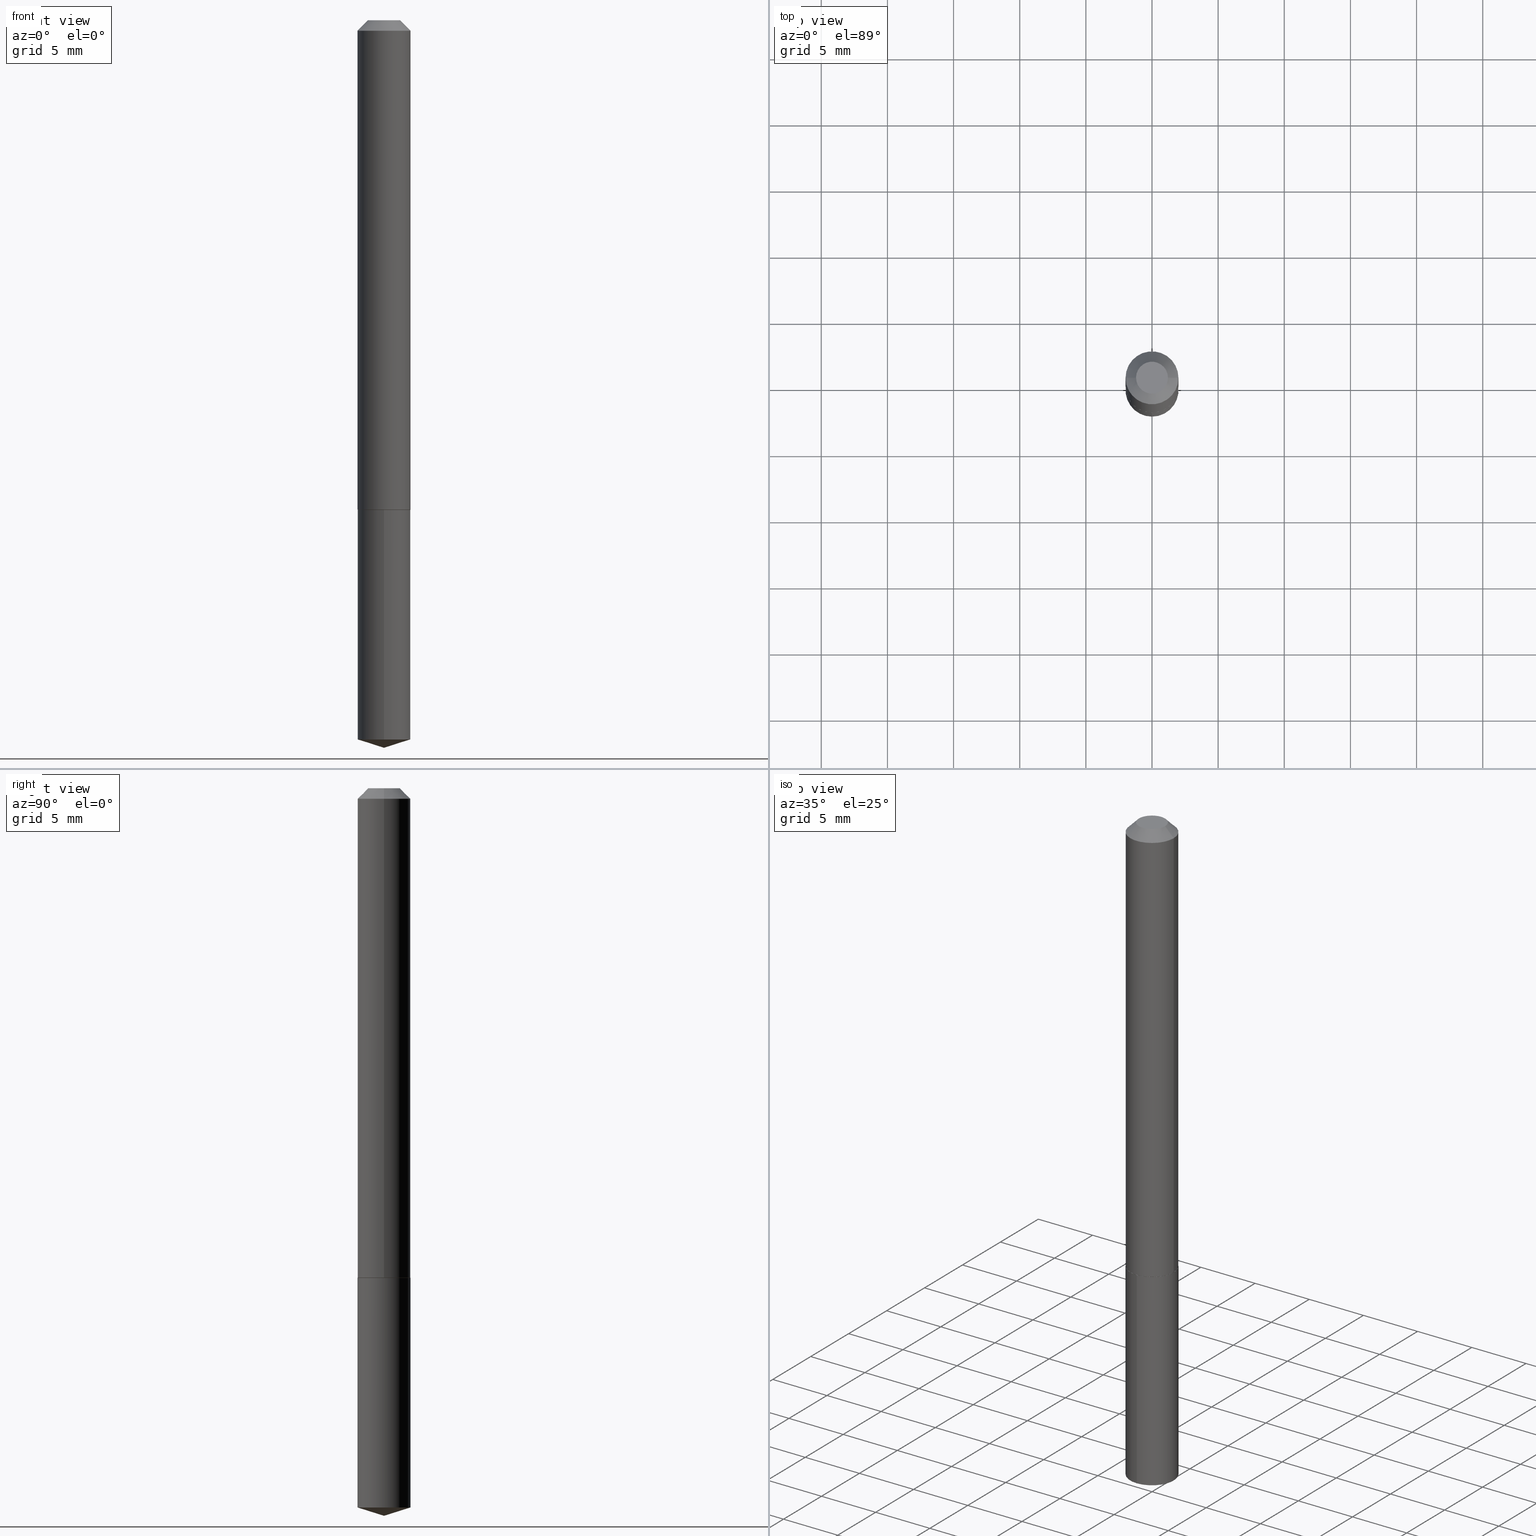
[diagram: canonical four-view strip — front | top / right | iso, engineering-drawing reading convention]
A machine part, canonical four-view strip (front | top / right | iso — engineering-drawing reading convention). The complete STEP part file that produces these views, byte-faithful:
ISO-10303-21;
HEADER;
FILE_DESCRIPTION (( 'STEP AP203' ),
    '1' );
FILE_NAME ('68688.STEP',
    '2024-04-23T13:37:27',
    ( '' ),
    ( '' ),
    'SwSTEP 2.0',
    'SolidWorks 2023',
    '' );
FILE_SCHEMA (( 'CONFIG_CONTROL_DESIGN' ));
ENDSEC;

DATA;
#1 = CIRCLE ( 'NONE', #268, 0.07825000000000018052 ) ;
#2 = ORIENTED_EDGE ( 'NONE', *, *, #316, .T. ) ;
#3 = APPLICATION_PROTOCOL_DEFINITION ( 'international standard', 'config_control_design', 1994, #143 ) ;
#4 = CARTESIAN_POINT ( 'NONE',  ( -5.989671091818618072E-48, 8.551662891793899026E-34, 2.449293598294692324E-19 ) ) ;
#5 = APPROVAL ( #45, 'UNSPECIFIED' ) ;
#6 = LOCAL_TIME ( 9, 37, 27.00000000000000000, #196 ) ;
#7 = ORIENTED_EDGE ( 'NONE', *, *, #195, .T. ) ;
#8 = DIRECTION ( 'NONE',  ( 1.000000000000000000, -6.982962677686271444E-15, 0.000000000000000000 ) ) ;
#9 = DIRECTION ( 'NONE',  ( -2.445414233920121595E-29, 3.491559489432707615E-15, 1.000000000000000000 ) ) ;
#10 = EDGE_CURVE ( 'NONE', #221, #154, #317, .T. ) ;
#11 = APPROVAL_ROLE ( '' ) ;
#12 = VECTOR ( 'NONE', #334, 39.37007874015748143 ) ;
#13 = LOCAL_TIME ( 9, 37, 27.00000000000000000, #390 ) ;
#14 = CIRCLE ( 'NONE', #223, 0.07875000000000000056 ) ;
#15 = CYLINDRICAL_SURFACE ( 'NONE', #227, 0.07875000000000008382 ) ;
#16 = CARTESIAN_POINT ( 'NONE',  ( 0.000000000000000000, 0.000000000000000000, 0.000000000000000000 ) ) ;
#17 = EDGE_CURVE ( 'NONE', #144, #291, #42, .T. ) ;
#18 = FACE_OUTER_BOUND ( 'NONE', #54, .T. ) ;
#19 = LINE ( 'NONE', #377, #287 ) ;
#20 = DIRECTION ( 'NONE',  ( -2.445468806185136597E-29, 3.491481338843145583E-15, 1.000000000000000000 ) ) ;
#21 = ORIENTED_EDGE ( 'NONE', *, *, #224, .F. ) ;
#22 = DIRECTION ( 'NONE',  ( -2.445468806185136877E-29, 3.491481338843145188E-15, 1.000000000000000000 ) ) ;
#23 = CALENDAR_DATE ( 2024, 23, 4 ) ;
#24 = CONICAL_SURFACE ( 'NONE', #246, 124.8659371009143797, 1.265363707695890128 ) ;
#25 = LOCAL_TIME ( 9, 37, 27.00000000000000000, #253 ) ;
#26 = LINE ( 'NONE', #62, #198 ) ;
#27 = ORIENTED_EDGE ( 'NONE', *, *, #331, .T. ) ;
#28 = ORIENTED_EDGE ( 'NONE', *, *, #102, .F. ) ;
#29 = DIRECTION ( 'NONE',  ( 1.000000000000000000, -6.982962677686271444E-15, 0.000000000000000000 ) ) ;
#30 = EDGE_CURVE ( 'NONE', #266, #235, #1, .T. ) ;
#31 = ORIENTED_EDGE ( 'NONE', *, *, #204, .T. ) ;
#32 = DIRECTION ( 'NONE',  ( -2.445468806185136597E-29, 3.491481338843145583E-15, 1.000000000000000000 ) ) ;
#33 = CLOSED_SHELL ( 'NONE', ( #151, #162, #156, #134, #282 ) ) ;
#34 = LINE ( 'NONE', #309, #12 ) ;
#35 = ADVANCED_FACE ( 'NONE', ( #133 ), #15, .T. ) ;
#36 = LINE ( 'NONE', #155, #159 ) ;
#37 = CLOSED_SHELL ( 'NONE', ( #72, #113, #274, #257, #356, #35, #108, #264 ) ) ;
#38 = VERTEX_POINT ( 'NONE', #256 ) ;
#39 = CARTESIAN_POINT ( 'NONE',  ( 3.561336222447415458E-29, -5.084644273757274032E-15, -1.456300000000000150 ) ) ;
#40 = PERSON ( 'UNSPECIFIED', 'UNSPECIFIED', 'UNSPECIFIED', ('UNSPECIFIED'), ('UNSPECIFIED'), ('UNSPECIFIED') ) ;
#41 = CARTESIAN_POINT ( 'NONE',  ( 0.000000000000000000, 0.000000000000000000, 0.000000000000000000 ) ) ;
#42 = LINE ( 'NONE', #183, #77 ) ;
#43 = ORIENTED_EDGE ( 'NONE', *, *, #52, .T. ) ;
#44 = DIRECTION ( 'NONE',  ( -2.445414233920121595E-29, 3.491559489432707615E-15, 1.000000000000000000 ) ) ;
#45 = APPROVAL_STATUS ( 'not_yet_approved' ) ;
#46 = CONICAL_SURFACE ( 'NONE', #119, 124.8659371009143797, 1.265363707695890128 ) ;
#47 = AXIS2_PLACEMENT_3D ( 'NONE', #218, #304, #8 ) ;
#48 = CARTESIAN_POINT ( 'NONE',  ( 0.07875000000000000056, -6.493730091633570889E-16, -0.03125000000000019429 ) ) ;
#49 = AXIS2_PLACEMENT_3D ( 'NONE', #53, #181, #389 ) ;
#50 = ORIENTED_EDGE ( 'NONE', *, *, #17, .F. ) ;
#51 = DIRECTION ( 'NONE',  ( -2.445414233920121595E-29, 3.491559489432707615E-15, 1.000000000000000000 ) ) ;
#52 = EDGE_CURVE ( 'NONE', #154, #221, #174, .T. ) ;
#53 = CARTESIAN_POINT ( 'NONE',  ( 3.562558956850507139E-29, -5.086390014426694746E-15, -1.456800000000000095 ) ) ;
#54 = EDGE_LOOP ( 'NONE', ( #300, #110, #359, #99 ) ) ;
#55 = DIRECTION ( 'NONE',  ( -2.445414233920121595E-29, 3.491559489432707615E-15, 1.000000000000000000 ) ) ;
#56 = DATE_TIME_ROLE ( 'classification_date' ) ;
#57 = AXIS2_PLACEMENT_3D ( 'NONE', #173, #322, #29 ) ;
#58 = EDGE_LOOP ( 'NONE', ( #21, #238, #7, #87 ) ) ;
#59 = ADVANCED_BREP_SHAPE_REPRESENTATION ( '68688', ( #83, #332, #152 ), #298 ) ;
#60 = PRODUCT_DEFINITION_FORMATION_WITH_SPECIFIED_SOURCE ( 'ANY', '', #145, .NOT_KNOWN. ) ;
#61 = EDGE_CURVE ( 'NONE', #158, #383, #19, .T. ) ;
#62 = CARTESIAN_POINT ( 'NONE',  ( -0.07875000000000008382, 5.595524044110794920E-16, -3.873661383575742696E-30 ) ) ;
#63 = PERSON_AND_ORGANIZATION ( #40, #68 ) ;
#64 = EDGE_LOOP ( 'NONE', ( #193, #308, #176 ) ) ;
#65 = DIRECTION ( 'NONE',  ( 6.982962677686265922E-15, 1.000000000000000000, -3.491559489432707615E-15 ) ) ;
#66 = DIRECTION ( 'NONE',  ( -1.000000000000000000, 6.982962677686265922E-15, -4.876176775795935793E-29 ) ) ;
#67 = VECTOR ( 'NONE', #22, 39.37007874015748143 ) ;
#68 = ORGANIZATION ( 'UNSPECIFIED', 'UNSPECIFIED', '' ) ;
#69 = EDGE_CURVE ( 'NONE', #144, #158, #252, .T. ) ;
#70 = CARTESIAN_POINT ( 'NONE',  ( -5.499083108677577483E-16, -0.07875000000000507983, -1.456799999999999873 ) ) ;
#71 = PERSON_AND_ORGANIZATION ( #40, #68 ) ;
#72 = ADVANCED_FACE ( 'NONE', ( #226 ), #313, .T. ) ;
#73 = SECURITY_CLASSIFICATION ( '', '', #182 ) ;
#74 = LINE ( 'NONE', #222, #232 ) ;
#75 = PERSON_AND_ORGANIZATION ( #40, #68 ) ;
#76 = DIRECTION ( 'NONE',  ( -2.445414233920121314E-29, 3.491559489432707615E-15, 1.000000000000000000 ) ) ;
#77 = VECTOR ( 'NONE', #371, 39.37007874015748143 ) ;
#78 = CC_DESIGN_DATE_AND_TIME_ASSIGNMENT ( #342, #164, ( #365 ) ) ;
#79 = PRODUCT_RELATED_PRODUCT_CATEGORY ( 'detail', '', ( #145 ) ) ;
#80 = DIRECTION ( 'NONE',  ( -1.000000000000000000, 6.982962677686265922E-15, 0.000000000000000000 ) ) ;
#81 = CARTESIAN_POINT ( 'NONE',  ( 3.562558956850507139E-29, -5.086390014426694746E-15, -1.456800000000000095 ) ) ;
#82 = AXIS2_PLACEMENT_3D ( 'NONE', #199, #101, #372 ) ;
#83 = MANIFOLD_SOLID_BREP ( 'Body-Move/Copy2[1]', #33 ) ;
#84 = LINE ( 'NONE', #239, #67 ) ;
#85 = ORIENTED_EDGE ( 'NONE', *, *, #337, .F. ) ;
#86 = FACE_OUTER_BOUND ( 'NONE', #131, .T. ) ;
#87 = ORIENTED_EDGE ( 'NONE', *, *, #314, .F. ) ;
#88 = DIRECTION ( 'NONE',  ( -6.982962677686267499E-15, -1.000000000000000000, 3.500519750498723759E-15 ) ) ;
#89 = COORDINATED_UNIVERSAL_TIME_OFFSET ( 5, 0, .BEHIND. ) ;
#90 = ORIENTED_EDGE ( 'NONE', *, *, #344, .F. ) ;
#91 = CARTESIAN_POINT ( 'NONE',  ( 5.595524044111309651E-16, 0.07874999999999247879, -2.140570220375780597 ) ) ;
#92 = ORIENTED_EDGE ( 'NONE', *, *, #69, .F. ) ;
#93 = CARTESIAN_POINT ( 'NONE',  ( -0.07875000000000016709, -4.525091869346193652E-15, -1.456300000000000150 ) ) ;
#94 = PERSON_AND_ORGANIZATION ( #40, #68 ) ;
#95 = AXIS2_PLACEMENT_3D ( 'NONE', #210, #329, #65 ) ;
#96 = CC_DESIGN_APPROVAL ( #215, ( #365 ) ) ;
#97 = MECHANICAL_CONTEXT ( 'NONE', #143, 'mechanical' ) ;
#98 = AXIS2_PLACEMENT_3D ( 'NONE', #123, #129, #341 ) ;
#99 = ORIENTED_EDGE ( 'NONE', *, *, #195, .F. ) ;
#100 = DATE_AND_TIME ( #245, #13 ) ;
#101 = DIRECTION ( 'NONE',  ( -2.445414233920121595E-29, 3.491559489432707615E-15, 1.000000000000000000 ) ) ;
#102 = EDGE_CURVE ( 'NONE', #291, #383, #103, .T. ) ;
#103 = CIRCLE ( 'NONE', #363, 0.07875000000000000056 ) ;
#104 = DIRECTION ( 'NONE',  ( 1.000000000000000000, -6.982962677686267499E-15, 4.876176775795935232E-29 ) ) ;
#105 = APPROVAL_PERSON_ORGANIZATION ( #140, #169, #260 ) ;
#106 = DIRECTION ( 'NONE',  ( -6.982962677686264344E-15, -1.000000000000000000, 3.469013325287953293E-15 ) ) ;
#107 = CC_DESIGN_PERSON_AND_ORGANIZATION_ASSIGNMENT ( #327, #380, ( #73 ) ) ;
#108 = ADVANCED_FACE ( 'NONE', ( #228 ), #157, .T. ) ;
#109 = CARTESIAN_POINT ( 'NONE',  ( -0.07875000000000000056, -2.037324128386980792E-15, -0.03125000000000019429 ) ) ;
#110 = ORIENTED_EDGE ( 'NONE', *, *, #224, .T. ) ;
#111 = DIRECTION ( 'NONE',  ( -2.445468806185136877E-29, 3.491481338843145188E-15, 1.000000000000000000 ) ) ;
#112 = DATE_AND_TIME ( #387, #177 ) ;
#113 = ADVANCED_FACE ( 'NONE', ( #18 ), #136, .T. ) ;
#114 = VERTEX_POINT ( 'NONE', #200 ) ;
#115 = CARTESIAN_POINT ( 'NONE',  ( 0.07875000000000016709, -5.634552584625068955E-15, -1.456300000000000150 ) ) ;
#116 = VERTEX_POINT ( 'NONE', #109 ) ;
#117 = FACE_OUTER_BOUND ( 'NONE', #335, .T. ) ;
#118 = APPROVAL_DATE_TIME ( #290, #5 ) ;
#119 = AXIS2_PLACEMENT_3D ( 'NONE', #382, #138, #88 ) ;
#120 = CARTESIAN_POINT ( 'NONE',  ( -5.499083108677408864E-16, -0.07875000000000743905, -2.140570220375780153 ) ) ;
#121 = DIRECTION ( 'NONE',  ( 1.000000000000000000, 0.000000000000000000, 0.000000000000000000 ) ) ;
#122 = ORIENTED_EDGE ( 'NONE', *, *, #172, .T. ) ;
#123 = CARTESIAN_POINT ( 'NONE',  ( 3.562558956850507139E-29, -5.086390014426694746E-15, -1.456800000000000095 ) ) ;
#124 = ORIENTED_EDGE ( 'NONE', *, *, #337, .T. ) ;
#125 = FACE_OUTER_BOUND ( 'NONE', #284, .T. ) ;
#126 = DIRECTION ( 'NONE',  ( -2.445468806185136597E-29, 3.491481338843145583E-15, 1.000000000000000000 ) ) ;
#127 = EDGE_CURVE ( 'NONE', #221, #114, #315, .T. ) ;
#128 = ORIENTED_EDGE ( 'NONE', *, *, #61, .F. ) ;
#129 = DIRECTION ( 'NONE',  ( -2.445468806185136597E-29, 3.491481338843145583E-15, 1.000000000000000000 ) ) ;
#130 = CC_DESIGN_DATE_AND_TIME_ASSIGNMENT ( #237, #56, ( #73 ) ) ;
#131 = EDGE_LOOP ( 'NONE', ( #90, #31, #92 ) ) ;
#132 = PERSON_AND_ORGANIZATION_ROLE ( 'creator' ) ;
#133 = FACE_OUTER_BOUND ( 'NONE', #58, .T. ) ;
#134 = ADVANCED_FACE ( 'NONE', ( #343 ), #203, .T. ) ;
#135 = EDGE_LOOP ( 'NONE', ( #205, #2, #189, #219 ) ) ;
#136 = CYLINDRICAL_SURFACE ( 'NONE', #345, 0.07875000000000008382 ) ;
#137 = ORIENTED_EDGE ( 'NONE', *, *, #102, .T. ) ;
#138 = DIRECTION ( 'NONE',  ( -2.445414233920121595E-29, 3.491559489432707615E-15, 1.000000000000000000 ) ) ;
#139 = AXIS2_PLACEMENT_3D ( 'NONE', #280, #255, #80 ) ;
#140 = PERSON_AND_ORGANIZATION ( #40, #68 ) ;
#141 = FACE_OUTER_BOUND ( 'NONE', #209, .T. ) ;
#142 = CC_DESIGN_PERSON_AND_ORGANIZATION_ASSIGNMENT ( #310, #132, ( #365 ) ) ;
#143 = APPLICATION_CONTEXT ( 'configuration controlled 3d designs of mechanical parts and assemblies' ) ;
#144 = VERTEX_POINT ( 'NONE', #91 ) ;
#145 = PRODUCT ( '68688', '68688', '', ( #97 ) ) ;
#146 = ORIENTED_EDGE ( 'NONE', *, *, #331, .F. ) ;
#147 = DIRECTION ( 'NONE',  ( -2.445414233920121595E-29, 3.491559489432707615E-15, 1.000000000000000000 ) ) ;
#148 = SHAPE_DEFINITION_REPRESENTATION ( #150, #59 ) ;
#149 = CARTESIAN_POINT ( 'NONE',  ( 0.07825000000000018052, -5.632806843955645874E-15, -1.456800000000000095 ) ) ;
#150 = PRODUCT_DEFINITION_SHAPE ( 'NONE', 'NONE',  #365 ) ;
#151 = ADVANCED_FACE ( 'NONE', ( #141 ), #384, .T. ) ;
#152 = AXIS2_PLACEMENT_3D ( 'NONE', #41, #188, #121 ) ;
#153 = CARTESIAN_POINT ( 'NONE',  ( 5.295299982130630381E-29, -7.560622918417585695E-15, -2.165399999999999991 ) ) ;
#154 = VERTEX_POINT ( 'NONE', #262 ) ;
#155 = CARTESIAN_POINT ( 'NONE',  ( 5.295460378139651895E-29, -7.560395218859838448E-15, -2.165399999999999991 ) ) ;
#156 = ADVANCED_FACE ( 'NONE', ( #86 ), #46, .T. ) ;
#157 = CONICAL_SURFACE ( 'NONE', #339, 0.07875000000000000056, 0.7853981633974452814 ) ;
#158 = VERTEX_POINT ( 'NONE', #120 ) ;
#159 = VECTOR ( 'NONE', #190, 39.37007874015747433 ) ;
#160 = PERSON_AND_ORGANIZATION_ROLE ( 'design_owner' ) ;
#161 = DIRECTION ( 'NONE',  ( -2.445468806185136597E-29, 3.491481338843145583E-15, 1.000000000000000000 ) ) ;
#162 = ADVANCED_FACE ( 'NONE', ( #171 ), #24, .T. ) ;
#163 = AXIS2_PLACEMENT_3D ( 'NONE', #4, #126, #307 ) ;
#164 = DATE_TIME_ROLE ( 'creation_date' ) ;
#165 = CIRCLE ( 'NONE', #388, 0.07875000000000016709 ) ;
#166 = CARTESIAN_POINT ( 'NONE',  ( 3.562558956850507139E-29, -5.086390014426694746E-15, -1.456800000000000095 ) ) ;
#167 = DIRECTION ( 'NONE',  ( 0.7071067811865453523, -7.319954787623248157E-15, -0.7071067811865496822 ) ) ;
#168 = DIRECTION ( 'NONE',  ( 2.445468806185136597E-29, -3.491481338843145583E-15, -1.000000000000000000 ) ) ;
#169 = APPROVAL ( #263, 'UNSPECIFIED' ) ;
#170 = ORIENTED_EDGE ( 'NONE', *, *, #30, .F. ) ;
#171 = FACE_OUTER_BOUND ( 'NONE', #64, .T. ) ;
#172 = EDGE_CURVE ( 'NONE', #235, #38, #259, .T. ) ;
#173 = CARTESIAN_POINT ( 'NONE',  ( 3.561336222447415458E-29, -5.084644273757274032E-15, -1.456300000000000150 ) ) ;
#174 = CIRCLE ( 'NONE', #333, 0.04749999999999999362 ) ;
#175 = PERSON_AND_ORGANIZATION ( #40, #68 ) ;
#176 = ORIENTED_EDGE ( 'NONE', *, *, #374, .F. ) ;
#177 = LOCAL_TIME ( 9, 37, 27.00000000000000000, #378 ) ;
#178 = ORIENTED_EDGE ( 'NONE', *, *, #52, .F. ) ;
#179 = DIRECTION ( 'NONE',  ( 1.000000000000000000, -6.982962677686265922E-15, 4.876176775795935793E-29 ) ) ;
#180 = ORIENTED_EDGE ( 'NONE', *, *, #30, .T. ) ;
#181 = DIRECTION ( 'NONE',  ( -2.445414233920121595E-29, 3.491559489432707615E-15, 1.000000000000000000 ) ) ;
#182 = SECURITY_CLASSIFICATION_LEVEL ( 'unclassified' ) ;
#183 = CARTESIAN_POINT ( 'NONE',  ( 5.595524044111143991E-16, 0.07874999999999490741, -1.456800000000000317 ) ) ;
#184 = DIRECTION ( 'NONE',  ( -2.445468806185136597E-29, 3.491481338843145583E-15, 1.000000000000000000 ) ) ;
#185 = AXIS2_PLACEMENT_3D ( 'NONE', #211, #184, #296 ) ;
#186 = CC_DESIGN_APPROVAL ( #5, ( #60 ) ) ;
#187 = DIRECTION ( 'NONE',  ( -6.982962677686264344E-15, -1.000000000000000000, 3.469013325287953293E-15 ) ) ;
#188 = DIRECTION ( 'NONE',  ( 0.000000000000000000, 0.000000000000000000, 1.000000000000000000 ) ) ;
#189 = ORIENTED_EDGE ( 'NONE', *, *, #385, .F. ) ;
#190 = DIRECTION ( 'NONE',  ( 6.776566513254254982E-15, 0.9537169507482283759, 0.3007057995042687337 ) ) ;
#191 = DIRECTION ( 'NONE',  ( 1.000000000000000000, -6.982962677686271444E-15, 0.000000000000000000 ) ) ;
#192 = AXIS2_PLACEMENT_3D ( 'NONE', #338, #9, #187 ) ;
#193 = ORIENTED_EDGE ( 'NONE', *, *, #204, .F. ) ;
#194 = APPROVAL_STATUS ( 'not_yet_approved' ) ;
#195 = EDGE_CURVE ( 'NONE', #38, #114, #84, .T. ) ;
#196 = COORDINATED_UNIVERSAL_TIME_OFFSET ( 5, 0, .BEHIND. ) ;
#197 = DIRECTION ( 'NONE',  ( 1.000000000000000000, -6.982962677686267499E-15, 4.876182450887182109E-29 ) ) ;
#198 = VECTOR ( 'NONE', #111, 39.37007874015748143 ) ;
#199 = CARTESIAN_POINT ( 'NONE',  ( 5.234660386488139142E-29, -7.473814415971244607E-15, -2.140570220375780153 ) ) ;
#200 = CARTESIAN_POINT ( 'NONE',  ( 0.07875000000000000056, -6.590171027066424463E-16, -0.03125000000000019429 ) ) ;
#201 = CONICAL_SURFACE ( 'NONE', #57, 0.07875000000000016709, 0.7853981633975336552 ) ;
#202 = DIRECTION ( 'NONE',  ( 1.000000000000000000, -6.982962677686264344E-15, 0.000000000000000000 ) ) ;
#203 = CYLINDRICAL_SURFACE ( 'NONE', #295, 0.07875000000000000056 ) ;
#204 = EDGE_CURVE ( 'NONE', #323, #158, #207, .T. ) ;
#205 = ORIENTED_EDGE ( 'NONE', *, *, #370, .T. ) ;
#206 = FACE_OUTER_BOUND ( 'NONE', #366, .T. ) ;
#207 = LINE ( 'NONE', #153, #325 ) ;
#208 = AXIS2_PLACEMENT_3D ( 'NONE', #271, #269, #66 ) ;
#209 = EDGE_LOOP ( 'NONE', ( #321, #381, #85, #128 ) ) ;
#210 = CARTESIAN_POINT ( 'NONE',  ( 3.562558956850507139E-29, -5.086390014426694746E-15, -1.456800000000000095 ) ) ;
#211 = CARTESIAN_POINT ( 'NONE',  ( 7.642090019328599159E-31, -1.091087918388489774E-16, -0.03125000000000019429 ) ) ;
#212 = APPROVAL_ROLE ( '' ) ;
#213 = CONICAL_SURFACE ( 'NONE', #47, 0.07875000000000016709, 0.7853981633975336552 ) ;
#214 = CARTESIAN_POINT ( 'NONE',  ( 5.295299982130631503E-29, -7.560622918417585695E-15, -2.165399999999999991 ) ) ;
#215 = APPROVAL ( #194, 'UNSPECIFIED' ) ;
#216 = ORIENTED_EDGE ( 'NONE', *, *, #127, .T. ) ;
#217 = DIRECTION ( 'NONE',  ( 1.000000000000000000, -6.982962677686271444E-15, 0.000000000000000000 ) ) ;
#218 = CARTESIAN_POINT ( 'NONE',  ( 3.561336222447415458E-29, -5.084644273757274032E-15, -1.456300000000000150 ) ) ;
#219 = ORIENTED_EDGE ( 'NONE', *, *, #172, .F. ) ;
#220 = VECTOR ( 'NONE', #326, 39.37007874015748143 ) ;
#221 = VERTEX_POINT ( 'NONE', #379 ) ;
#222 = CARTESIAN_POINT ( 'NONE',  ( -0.07875000000000000056, 4.407995190289445409E-16, -0.03125000000000019429 ) ) ;
#223 = AXIS2_PLACEMENT_3D ( 'NONE', #244, #44, #306 ) ;
#224 = EDGE_CURVE ( 'NONE', #248, #116, #26, .T. ) ;
#225 = APPROVAL_DATE_TIME ( #100, #215 ) ;
#226 = FACE_OUTER_BOUND ( 'NONE', #283, .T. ) ;
#227 = AXIS2_PLACEMENT_3D ( 'NONE', #16, #20, #104 ) ;
#228 = FACE_OUTER_BOUND ( 'NONE', #349, .T. ) ;
#229 = DIRECTION ( 'NONE',  ( -2.445468806185136597E-29, 3.491481338843145583E-15, 1.000000000000000000 ) ) ;
#230 = DESIGN_CONTEXT ( 'detailed design', #355, 'design' ) ;
#231 = ORIENTED_EDGE ( 'NONE', *, *, #316, .F. ) ;
#232 = VECTOR ( 'NONE', #336, 39.37007874015748143 ) ;
#233 = CARTESIAN_POINT ( 'NONE',  ( -0.07825000000000018052, -4.527741096520304853E-15, -1.456800000000000095 ) ) ;
#234 = PERSON_AND_ORGANIZATION_ROLE ( 'design_supplier' ) ;
#235 = VERTEX_POINT ( 'NONE', #149 ) ;
#236 = DIRECTION ( 'NONE',  ( -2.438088387897960049E-29, 3.491481338843145188E-15, 1.000000000000000000 ) ) ;
#237 = DATE_AND_TIME ( #353, #278 ) ;
#238 = ORIENTED_EDGE ( 'NONE', *, *, #360, .T. ) ;
#239 = CARTESIAN_POINT ( 'NONE',  ( 0.07875000000000008382, -5.499083108677941345E-16, 3.839989210939303220E-30 ) ) ;
#240 = ORIENTED_EDGE ( 'NONE', *, *, #10, .F. ) ;
#241 = FACE_OUTER_BOUND ( 'NONE', #286, .T. ) ;
#242 = UNCERTAINTY_MEASURE_WITH_UNIT (LENGTH_MEASURE( 1.000000000000000082E-05 ), #275, 'distance_accuracy_value', 'NONE');
#243 = DIRECTION ( 'NONE',  ( 1.000000000000000000, -6.982962677686265922E-15, 0.000000000000000000 ) ) ;
#244 = CARTESIAN_POINT ( 'NONE',  ( 5.234660386488139142E-29, -7.473814415971244607E-15, -2.140570220375780153 ) ) ;
#245 = CALENDAR_DATE ( 2024, 23, 4 ) ;
#246 = AXIS2_PLACEMENT_3D ( 'NONE', #285, #147, #358 ) ;
#247 = APPROVAL_PERSON_ORGANIZATION ( #94, #215, #212 ) ;
#248 = VERTEX_POINT ( 'NONE', #93 ) ;
#249 = EDGE_LOOP ( 'NONE', ( #50, #303, #311, #28 ) ) ;
#250 =( LENGTH_UNIT ( ) NAMED_UNIT ( * ) SI_UNIT ( $, .METRE. ) );
#251 = ORIENTED_EDGE ( 'NONE', *, *, #127, .F. ) ;
#252 = CIRCLE ( 'NONE', #82, 0.07875000000000000056 ) ;
#253 = COORDINATED_UNIVERSAL_TIME_OFFSET ( 5, 0, .BEHIND. ) ;
#254 = DIRECTION ( 'NONE',  ( -2.445468806185136597E-29, 3.491481338843145583E-15, 1.000000000000000000 ) ) ;
#255 = DIRECTION ( 'NONE',  ( 2.445468806185136597E-29, -3.491481338843145583E-15, -1.000000000000000000 ) ) ;
#256 = CARTESIAN_POINT ( 'NONE',  ( 0.07875000000000016709, -5.634552584625068955E-15, -1.456300000000000150 ) ) ;
#257 = ADVANCED_FACE ( 'NONE', ( #206 ), #386, .F. ) ;
#258 = AXIS2_PLACEMENT_3D ( 'NONE', #330, #236, #179 ) ;
#259 = LINE ( 'NONE', #115, #220 ) ;
#260 = APPROVAL_ROLE ( '' ) ;
#261 = AXIS2_PLACEMENT_3D ( 'NONE', #39, #161, #191 ) ;
#262 = CARTESIAN_POINT ( 'NONE',  ( -0.04749999999999999362, 3.862451231095211738E-16, 2.449293598269590716E-19 ) ) ;
#263 = APPROVAL_STATUS ( 'not_yet_approved' ) ;
#264 = ADVANCED_FACE ( 'NONE', ( #117 ), #354, .F. ) ;
#265 = ORIENTED_EDGE ( 'NONE', *, *, #360, .F. ) ;
#266 = VERTEX_POINT ( 'NONE', #233 ) ;
#267 = PLANE ( 'NONE',  #95 ) ;
#268 = AXIS2_PLACEMENT_3D ( 'NONE', #166, #281, #202 ) ;
#269 = DIRECTION ( 'NONE',  ( 2.438088387897960049E-29, -3.491481338843145188E-15, -1.000000000000000000 ) ) ;
#270 = PERSON_AND_ORGANIZATION_ROLE ( 'creator' ) ;
#271 = CARTESIAN_POINT ( 'NONE',  ( -2.994835545909309036E-48, 4.275831445896949513E-34, 1.224646799147346162E-19 ) ) ;
#272 = CARTESIAN_POINT ( 'NONE',  ( 3.561336222447415458E-29, -5.084644273757274032E-15, -1.456300000000000150 ) ) ;
#273 = APPROVAL_PERSON_ORGANIZATION ( #75, #5, #11 ) ;
#274 = ADVANCED_FACE ( 'NONE', ( #292 ), #201, .T. ) ;
#275 =( CONVERSION_BASED_UNIT ( 'INCH', #364 ) LENGTH_UNIT ( ) NAMED_UNIT ( #320 ) );
#276 =( NAMED_UNIT ( * ) SI_UNIT ( $, .STERADIAN. ) SOLID_ANGLE_UNIT ( ) );
#277 = AXIS2_PLACEMENT_3D ( 'NONE', #294, #32, #243 ) ;
#278 = LOCAL_TIME ( 9, 37, 27.00000000000000000, #89 ) ;
#279 = CC_DESIGN_PERSON_AND_ORGANIZATION_ASSIGNMENT ( #71, #160, ( #145 ) ) ;
#280 = CARTESIAN_POINT ( 'NONE',  ( 7.642090019328599159E-31, -1.091087918388489774E-16, -0.03125000000000019429 ) ) ;
#281 = DIRECTION ( 'NONE',  ( -2.445468806185136597E-29, 3.491481338843145583E-15, 1.000000000000000000 ) ) ;
#282 = ADVANCED_FACE ( 'NONE', ( #241 ), #267, .F. ) ;
#283 = EDGE_LOOP ( 'NONE', ( #240, #216, #318, #146 ) ) ;
#284 = EDGE_LOOP ( 'NONE', ( #231, #180, #122, #265 ) ) ;
#285 = CARTESIAN_POINT ( 'NONE',  ( -9.098077145873076206E-28, 1.299024629562710534E-13, 37.20467874015748322 ) ) ;
#286 = EDGE_LOOP ( 'NONE', ( #124, #137 ) ) ;
#287 = VECTOR ( 'NONE', #76, 39.37007874015748143 ) ;
#288 = EDGE_CURVE ( 'NONE', #114, #116, #368, .T. ) ;
#289 = CARTESIAN_POINT ( 'NONE',  ( 3.562558956850507139E-29, -5.086390014426694746E-15, -1.456800000000000095 ) ) ;
#290 = DATE_AND_TIME ( #23, #25 ) ;
#291 = VERTEX_POINT ( 'NONE', #361 ) ;
#292 = FACE_OUTER_BOUND ( 'NONE', #135, .T. ) ;
#293 = APPROVAL_DATE_TIME ( #112, #169 ) ;
#294 = CARTESIAN_POINT ( 'NONE',  ( 7.642090019328599159E-31, -1.091087918388489774E-16, -0.03125000000000019429 ) ) ;
#295 = AXIS2_PLACEMENT_3D ( 'NONE', #289, #55, #352 ) ;
#296 = DIRECTION ( 'NONE',  ( 1.000000000000000000, -6.982962677686265922E-15, 0.000000000000000000 ) ) ;
#297 = ORIENTED_EDGE ( 'NONE', *, *, #314, .T. ) ;
#298 =( GEOMETRIC_REPRESENTATION_CONTEXT ( 3 ) GLOBAL_UNCERTAINTY_ASSIGNED_CONTEXT ( ( #242 ) ) GLOBAL_UNIT_ASSIGNED_CONTEXT ( ( #275, #299, #276 ) ) REPRESENTATION_CONTEXT ( 'NONE', 'WORKASPACE' ) );
#299 =( NAMED_UNIT ( * ) PLANE_ANGLE_UNIT ( ) SI_UNIT ( $, .RADIAN. ) );
#300 = ORIENTED_EDGE ( 'NONE', *, *, #385, .T. ) ;
#301 = CC_DESIGN_PERSON_AND_ORGANIZATION_ASSIGNMENT ( #175, #234, ( #60 ) ) ;
#302 = DIRECTION ( 'NONE',  ( -2.445468806185136597E-29, 3.491481338843145583E-15, 1.000000000000000000 ) ) ;
#303 = ORIENTED_EDGE ( 'NONE', *, *, #69, .T. ) ;
#304 = DIRECTION ( 'NONE',  ( -2.445468806185136597E-29, 3.491481338843145583E-15, 1.000000000000000000 ) ) ;
#305 = CC_DESIGN_PERSON_AND_ORGANIZATION_ASSIGNMENT ( #63, #270, ( #60 ) ) ;
#306 = DIRECTION ( 'NONE',  ( -6.982962677686264344E-15, -1.000000000000000000, 3.469013325287953293E-15 ) ) ;
#307 = DIRECTION ( 'NONE',  ( 1.000000000000000000, -6.982962677686267499E-15, 4.876182450887182109E-29 ) ) ;
#308 = ORIENTED_EDGE ( 'NONE', *, *, #344, .T. ) ;
#309 = CARTESIAN_POINT ( 'NONE',  ( -0.07875000000000016709, -4.525091869346193652E-15, -1.456300000000000150 ) ) ;
#310 = PERSON_AND_ORGANIZATION ( #40, #68 ) ;
#311 = ORIENTED_EDGE ( 'NONE', *, *, #61, .T. ) ;
#312 = DIRECTION ( 'NONE',  ( -1.000000000000000000, 6.982962677686265922E-15, 0.000000000000000000 ) ) ;
#313 = CONICAL_SURFACE ( 'NONE', #139, 0.07875000000000000056, 0.7853981633974452814 ) ;
#314 = EDGE_CURVE ( 'NONE', #116, #114, #351, .T. ) ;
#315 = LINE ( 'NONE', #48, #373 ) ;
#316 = EDGE_CURVE ( 'NONE', #266, #248, #34, .T. ) ;
#317 = CIRCLE ( 'NONE', #163, 0.04749999999999999362 ) ;
#318 = ORIENTED_EDGE ( 'NONE', *, *, #288, .T. ) ;
#319 = CIRCLE ( 'NONE', #261, 0.07875000000000016709 ) ;
#320 = DIMENSIONAL_EXPONENTS ( 1.000000000000000000, 0.000000000000000000, 0.000000000000000000, 0.000000000000000000, 0.000000000000000000, 0.000000000000000000, 0.000000000000000000 ) ;
#321 = ORIENTED_EDGE ( 'NONE', *, *, #374, .T. ) ;
#322 = DIRECTION ( 'NONE',  ( -2.445468806185136597E-29, 3.491481338843145583E-15, 1.000000000000000000 ) ) ;
#323 = VERTEX_POINT ( 'NONE', #214 ) ;
#324 = ORIENTED_EDGE ( 'NONE', *, *, #10, .T. ) ;
#325 = VECTOR ( 'NONE', #357, 39.37007874015748143 ) ;
#326 = DIRECTION ( 'NONE',  ( 0.7071067811866078578, -2.468850131082888544E-15, 0.7071067811864871766 ) ) ;
#327 = PERSON_AND_ORGANIZATION ( #40, #68 ) ;
#328 = CC_DESIGN_APPROVAL ( #169, ( #73 ) ) ;
#329 = DIRECTION ( 'NONE',  ( 2.445414233920121314E-29, -3.491559489432707615E-15, -1.000000000000000000 ) ) ;
#330 = CARTESIAN_POINT ( 'NONE',  ( 3.562558956850507139E-29, -5.086390014426694746E-15, -1.456800000000000095 ) ) ;
#331 = EDGE_CURVE ( 'NONE', #154, #116, #74, .T. ) ;
#332 = MANIFOLD_SOLID_BREP ( 'Body-Move/Copy2[2]', #37 ) ;
#333 = AXIS2_PLACEMENT_3D ( 'NONE', #350, #254, #197 ) ;
#334 = DIRECTION ( 'NONE',  ( -0.7071067811866078578, 7.493145998870571886E-15, 0.7071067811864871766 ) ) ;
#335 = EDGE_LOOP ( 'NONE', ( #43, #324 ) ) ;
#336 = DIRECTION ( 'NONE',  ( -0.7071067811865453523, 2.468850131082234184E-15, -0.7071067811865496822 ) ) ;
#337 = EDGE_CURVE ( 'NONE', #383, #291, #340, .T. ) ;
#338 = CARTESIAN_POINT ( 'NONE',  ( 3.562558956850507139E-29, -5.086390014426694746E-15, -1.456800000000000095 ) ) ;
#339 = AXIS2_PLACEMENT_3D ( 'NONE', #347, #168, #312 ) ;
#340 = CIRCLE ( 'NONE', #192, 0.07875000000000000056 ) ;
#341 = DIRECTION ( 'NONE',  ( 1.000000000000000000, -6.982962677686264344E-15, 0.000000000000000000 ) ) ;
#342 = DATE_AND_TIME ( #369, #6 ) ;
#343 = FACE_OUTER_BOUND ( 'NONE', #249, .T. ) ;
#344 = EDGE_CURVE ( 'NONE', #323, #144, #36, .T. ) ;
#345 = AXIS2_PLACEMENT_3D ( 'NONE', #376, #229, #348 ) ;
#346 = CIRCLE ( 'NONE', #98, 0.07825000000000018052 ) ;
#347 = CARTESIAN_POINT ( 'NONE',  ( 7.642090019328599159E-31, -1.091087918388489774E-16, -0.03125000000000019429 ) ) ;
#348 = DIRECTION ( 'NONE',  ( 1.000000000000000000, -6.982962677686267499E-15, 4.876176775795935232E-29 ) ) ;
#349 = EDGE_LOOP ( 'NONE', ( #251, #178, #27, #297 ) ) ;
#350 = CARTESIAN_POINT ( 'NONE',  ( -5.989671091818618072E-48, 8.551662891793899026E-34, 2.449293598294692324E-19 ) ) ;
#351 = CIRCLE ( 'NONE', #185, 0.07875000000000000056 ) ;
#352 = DIRECTION ( 'NONE',  ( -6.982962677686264344E-15, -1.000000000000000000, 3.469013325287953293E-15 ) ) ;
#353 = CALENDAR_DATE ( 2024, 23, 4 ) ;
#354 = PLANE ( 'NONE',  #208 ) ;
#355 = APPLICATION_CONTEXT ( 'configuration controlled 3d designs of mechanical parts and assemblies' ) ;
#356 = ADVANCED_FACE ( 'NONE', ( #125 ), #213, .T. ) ;
#357 = DIRECTION ( 'NONE',  ( -6.659769872151628144E-15, -0.9537169507482261555, 0.3007057995042753396 ) ) ;
#358 = DIRECTION ( 'NONE',  ( -6.982962677686267499E-15, -1.000000000000000000, 3.500519750498723759E-15 ) ) ;
#359 = ORIENTED_EDGE ( 'NONE', *, *, #288, .F. ) ;
#360 = EDGE_CURVE ( 'NONE', #248, #38, #165, .T. ) ;
#361 = CARTESIAN_POINT ( 'NONE',  ( 5.595524044111311624E-16, 0.07874999999999490741, -1.456800000000000317 ) ) ;
#362 = APPLICATION_PROTOCOL_DEFINITION ( 'international standard', 'config_control_design', 1994, #355 ) ;
#363 = AXIS2_PLACEMENT_3D ( 'NONE', #81, #51, #106 ) ;
#364 = LENGTH_MEASURE_WITH_UNIT ( LENGTH_MEASURE( 0.02539999999999999897 ), #250 );
#365 = PRODUCT_DEFINITION ( 'UNKNOWN', '', #60, #230 ) ;
#366 = EDGE_LOOP ( 'NONE', ( #367, #170 ) ) ;
#367 = ORIENTED_EDGE ( 'NONE', *, *, #370, .F. ) ;
#368 = CIRCLE ( 'NONE', #277, 0.07875000000000000056 ) ;
#369 = CALENDAR_DATE ( 2024, 23, 4 ) ;
#370 = EDGE_CURVE ( 'NONE', #235, #266, #346, .T. ) ;
#371 = DIRECTION ( 'NONE',  ( -2.445414233920121314E-29, 3.491559489432707615E-15, 1.000000000000000000 ) ) ;
#372 = DIRECTION ( 'NONE',  ( -6.982962677686264344E-15, -1.000000000000000000, 3.469013325287953293E-15 ) ) ;
#373 = VECTOR ( 'NONE', #167, 39.37007874015748143 ) ;
#374 = EDGE_CURVE ( 'NONE', #158, #144, #14, .T. ) ;
#375 = CC_DESIGN_SECURITY_CLASSIFICATION ( #73, ( #60 ) ) ;
#376 = CARTESIAN_POINT ( 'NONE',  ( 0.000000000000000000, 0.000000000000000000, 0.000000000000000000 ) ) ;
#377 = CARTESIAN_POINT ( 'NONE',  ( -5.499083108677577483E-16, -0.07875000000000507983, -1.456799999999999873 ) ) ;
#378 = COORDINATED_UNIVERSAL_TIME_OFFSET ( 5, 0, .BEHIND. ) ;
#379 = CARTESIAN_POINT ( 'NONE',  ( 0.04749999999999999362, -4.876233320287524565E-16, 2.449293598323333791E-19 ) ) ;
#380 = PERSON_AND_ORGANIZATION_ROLE ( 'classification_officer' ) ;
#381 = ORIENTED_EDGE ( 'NONE', *, *, #17, .T. ) ;
#382 = CARTESIAN_POINT ( 'NONE',  ( -9.098077145873076206E-28, 1.299024629562710534E-13, 37.20467874015748322 ) ) ;
#383 = VERTEX_POINT ( 'NONE', #70 ) ;
#384 = CYLINDRICAL_SURFACE ( 'NONE', #49, 0.07875000000000000056 ) ;
#385 = EDGE_CURVE ( 'NONE', #38, #248, #319, .T. ) ;
#386 = PLANE ( 'NONE',  #258 ) ;
#387 = CALENDAR_DATE ( 2024, 23, 4 ) ;
#388 = AXIS2_PLACEMENT_3D ( 'NONE', #272, #302, #217 ) ;
#389 = DIRECTION ( 'NONE',  ( -6.982962677686264344E-15, -1.000000000000000000, 3.469013325287953293E-15 ) ) ;
#390 = COORDINATED_UNIVERSAL_TIME_OFFSET ( 5, 0, .BEHIND. ) ;
ENDSEC;
END-ISO-10303-21;
